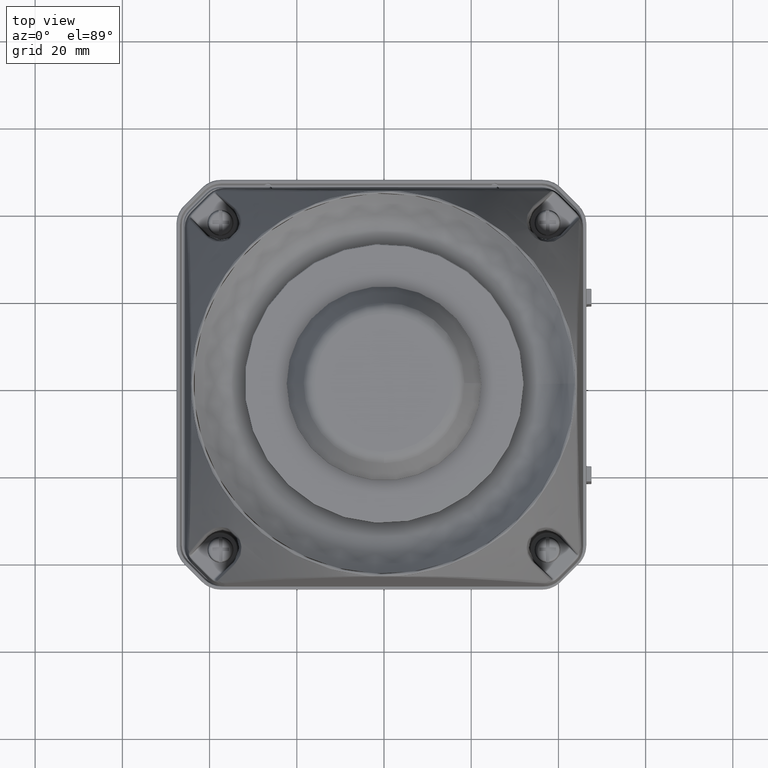
[diagram: clean part render]
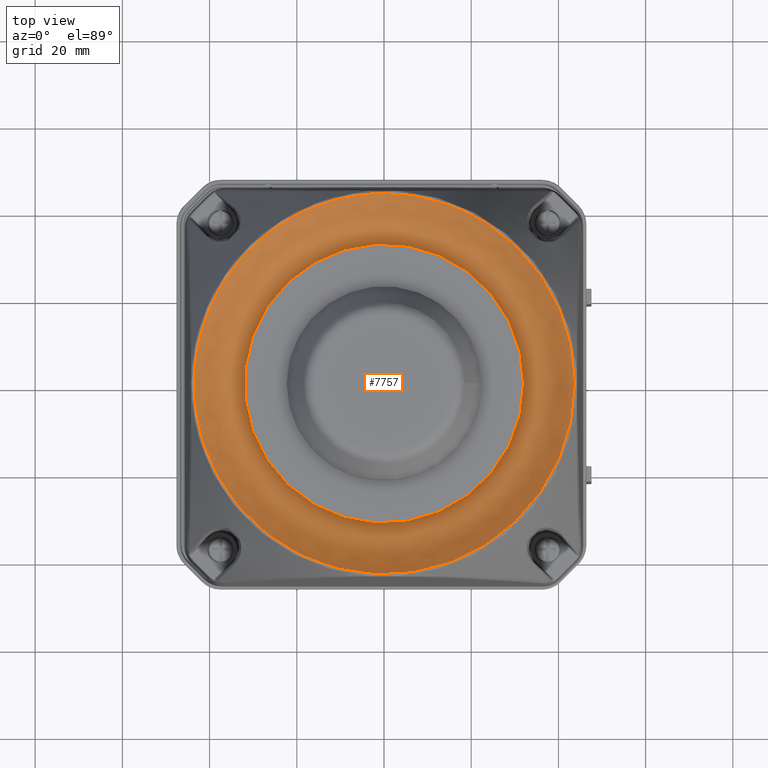
[diagram: same view with one face highlighted and labeled with its STEP entity id]
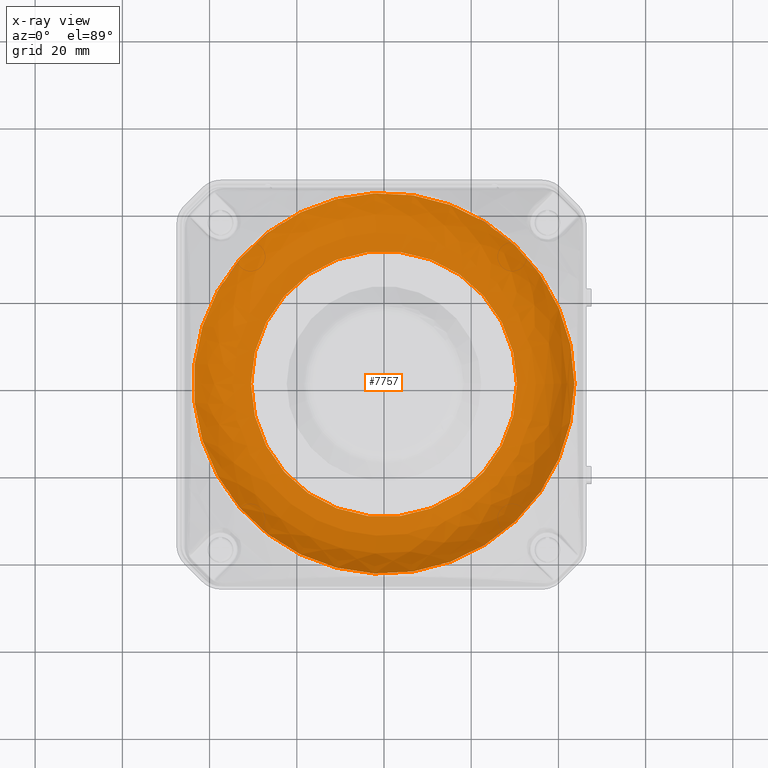
[diagram: x-ray of the same camera — body ghosted, the highlighted face saturated]
A machine part, top view. The second image highlights one B-rep face of the part: STEP entity #7757.
The next image is the same camera in x-ray: the body ghosted, the highlighted face saturated — about 0% of this face is hidden behind the body in this view.
In plain terms, the highlighted face is a SurfaceOfRevolution surface.
Its self-contained STEP definition (entity closure, byte-faithful):
#1004=SURFACE_OF_REVOLUTION('',#1680,#1007);
#1007=AXIS1_PLACEMENT('',#46651,#36210);
#1680=B_SPLINE_CURVE_WITH_KNOTS('',3,(#46631,#46632,#46633,#46634,#46635,
#46636,#46637,#46638,#46639,#46640,#46641,#46642,#46643,#46644,#46645,#46646,
#46647,#46648,#46649,#46650),.UNSPECIFIED.,.F.,.F.,(4,1,1,1,1,1,1,1,1,1,
1,1,1,1,1,1,1,4),(0.,0.0117486223594608,0.0340680082958724,0.0561435360508692,
0.0779776673442107,0.0995729512425446,0.120855297378724,0.243558181729006,
0.354598308907106,0.445751354685416,0.54883036257938,0.639561515768826,0.717671670272637,
0.795054579246203,0.868577685243862,0.93880926924766,0.96940463462383,1.),
 .UNSPECIFIED.);
#3022=FACE_BOUND('',#11846,.T.);
#3023=FACE_BOUND('',#11847,.T.);
#7757=ADVANCED_FACE('',(#3022,#3023),#1004,.T.);
#11846=EDGE_LOOP('',(#14656));
#11847=EDGE_LOOP('',(#14657));
#14656=ORIENTED_EDGE('',*,*,#26172,.F.);
#14657=ORIENTED_EDGE('',*,*,#26173,.T.);
#23401=VERTEX_POINT('',#46628);
#23402=VERTEX_POINT('',#46630);
#26172=EDGE_CURVE('',#23401,#23401,#30258,.T.);
#26173=EDGE_CURVE('',#23402,#23402,#30259,.T.);
#30258=CIRCLE('',#32138,30.5);
#30259=CIRCLE('',#32139,43.6662064085297);
#32138=AXIS2_PLACEMENT_3D('',#46627,#36206,#36207);
#32139=AXIS2_PLACEMENT_3D('',#46629,#36208,#36209);
#36206=DIRECTION('',(0.,0.,1.));
#36207=DIRECTION('',(1.,0.,0.));
#36208=DIRECTION('',(0.,0.,1.));
#36209=DIRECTION('',(1.,0.,0.));
#36210=DIRECTION('',(0.,0.,1.));
#46627=CARTESIAN_POINT('',(0.,0.,-36.404816470333));
#46628=CARTESIAN_POINT('',(30.5,0.,-36.404816470333));
#46629=CARTESIAN_POINT('',(0.,0.,-28.6999036403726));
#46630=CARTESIAN_POINT('',(43.6662064085297,0.,-28.6999036403726));
#46631=CARTESIAN_POINT('',(43.6662064085297,0.,-28.6999036403726));
#46632=CARTESIAN_POINT('',(43.619066539889,0.,-28.7431932839557));
#46633=CARTESIAN_POINT('',(43.4827636851973,0.,-28.8691383282189));
#46634=CARTESIAN_POINT('',(43.2601299735141,0.,-29.0788557509735));
#46635=CARTESIAN_POINT('',(43.0000822652966,0.,-29.3288961421722));
#46636=CARTESIAN_POINT('',(42.7450353215143,0.,-29.5786113718146));
#46637=CARTESIAN_POINT('',(42.4977612195812,0.,-29.8293923349905));
#46638=CARTESIAN_POINT('',(41.8533985180595,0.,-30.4651459785695));
#46639=CARTESIAN_POINT('',(41.3408705687847,0.,-31.807375944366));
#46640=CARTESIAN_POINT('',(40.1470698334144,0.,-33.1321256680292));
#46641=CARTESIAN_POINT('',(38.9536062415756,0.,-34.2890673862202));
#46642=CARTESIAN_POINT('',(37.6988369400858,0.,-35.2173206675364));
#46643=CARTESIAN_POINT('',(36.3721976044019,0.,-35.8879097898296));
#46644=CARTESIAN_POINT('',(35.0978744801916,0.,-36.3241293723765));
#46645=CARTESIAN_POINT('',(33.8652720114196,0.,-36.531020128718));
#46646=CARTESIAN_POINT('',(32.6533128161802,0.,-36.5994716146491));
#46647=CARTESIAN_POINT('',(31.7172172890051,0.,-36.3843370744469));
#46648=CARTESIAN_POINT('',(30.9997609803187,0.,-36.408578820056));
#46649=CARTESIAN_POINT('',(30.6666666666667,0.,-36.404816470333));
#46650=CARTESIAN_POINT('',(30.5,0.,-36.404816470333));
#46651=CARTESIAN_POINT('',(0.,0.,-18.904816470333));